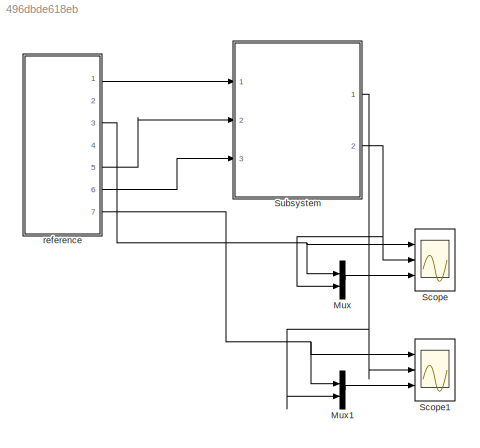
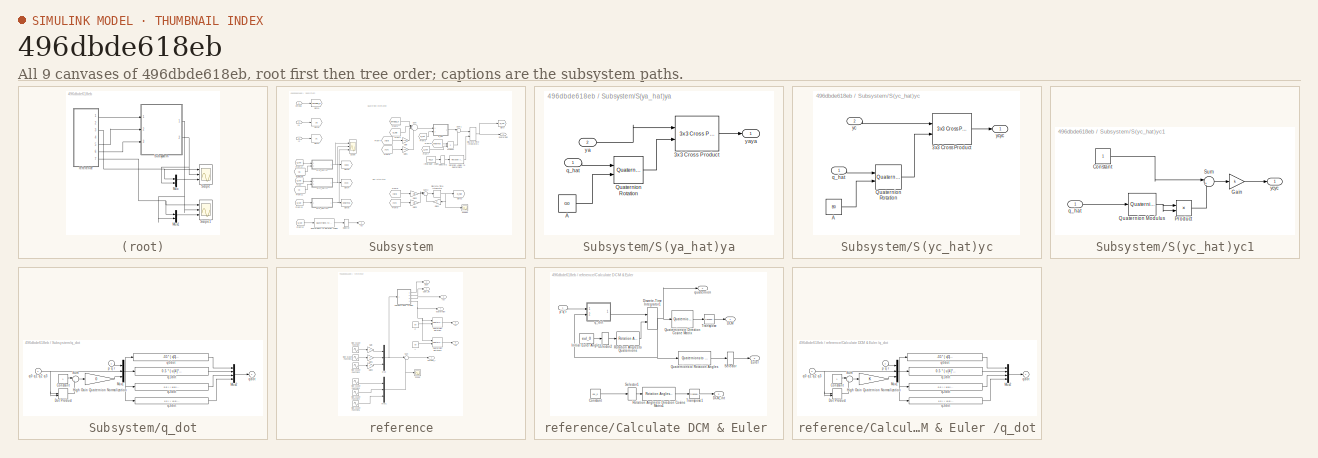
[diagram: thumbnail index - all 9 canvases of the model, root first then tree order]
MODEL slx_496dbde618eb
KIND model
CONFIG AbsTol = auto
CONFIG EnableMultiTasking = off
CONFIG FixedStep = t_sim
CONFIG MaxStep = auto
CONFIG MinStep = auto
CONFIG RelTol = 1e-3
CONFIG SampleTimeConstraint = Unconstrained
CONFIG SolverName = ode3
CONFIG StartTime = 0.0
CONFIG StopTime = 40
BLOCK [Mux] Mux
  DisplayOption = bar
  Inputs = 2
  Ports = [2, 1]
BLOCK [Mux] Mux1
  DisplayOption = bar
  Inputs = 2
  Ports = [2, 1]
BLOCK [Scope] Scope
  Floating = off
  NumInputPorts = 3
  Ports = [3]
  ScopeSpecificationString = Simulink.scopes.TimeScopeBlockCfg('CurrentConfiguration', extmgr.ConfigurationSet(extmgr.Configuration('Core','General UI',true),extmgr.Configuration('Core','Source UI',true),extmgr.Configuration('Sources','WiredSimulink',true),extmgr.Configuration('Visuals','Time Domain',true,'SerializedDisplays',{struct('MinYLimReal','-0.25','MaxYLimReal','2.25','YLabelReal','','MinYLimMag','0.00000','MaxYLimMag...<+2789ch>
BLOCK [Scope] Scope1
  Floating = off
  NumInputPorts = 3
  Ports = [3]
  ScopeSpecificationString = Simulink.scopes.TimeScopeBlockCfg('CurrentConfiguration', extmgr.ConfigurationSet(extmgr.Configuration('Core','General UI',true),extmgr.Configuration('Core','Source UI',true),extmgr.Configuration('Sources','WiredSimulink',true,'DataLoggingVariableName','ScopeData1'),extmgr.Configuration('Visuals','Time Domain',true,'SerializedDisplays',{struct('MinYLimReal','-0.125','MaxYLimReal','1.125','YLabelRe...<+2897ch>
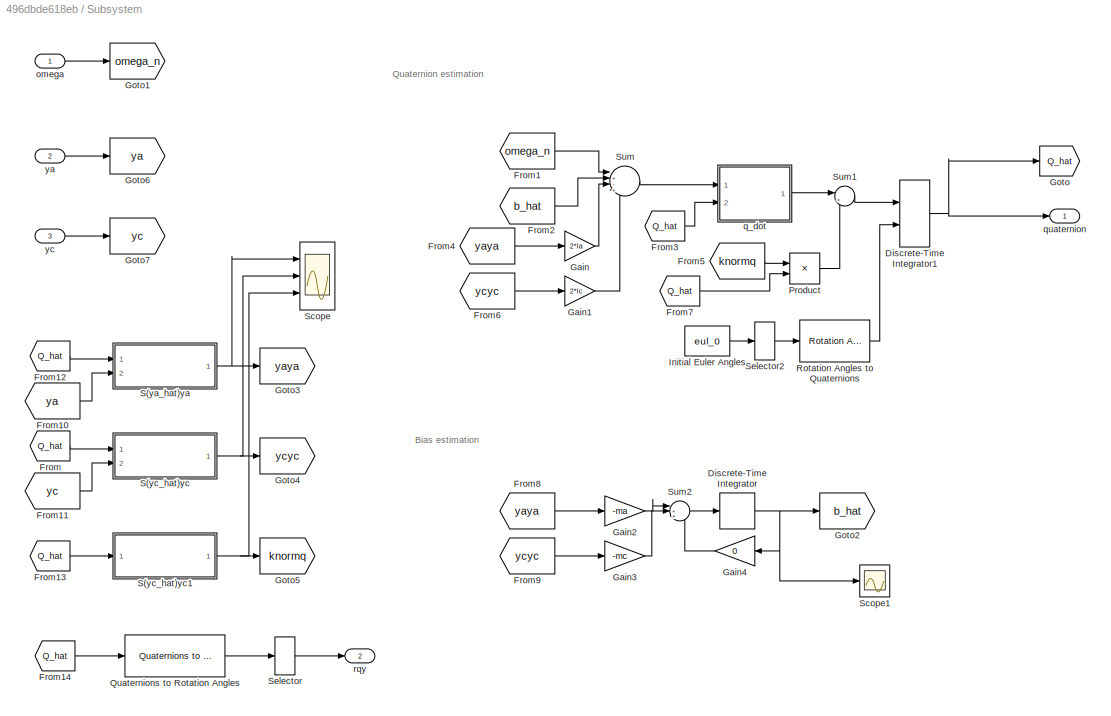
BLOCK [SubSystem] Subsystem
  Ports = [3, 2]
  RequestExecContextInheritance = off
BLOCK [DiscreteIntegrator] Subsystem/Discrete-Time Integrator
  ICPrevOutput = DiscIntNeverNeededParam
  ICPrevScaledInput = DiscIntNeverNeededParam
  InitialConditionSetting = Auto
  Ports = [1, 1]
  SampleTime = -1
BLOCK [DiscreteIntegrator] Subsystem/Discrete-Time Integrator1
  ICPrevOutput = DiscIntNeverNeededParam
  ICPrevScaledInput = DiscIntNeverNeededParam
  InitialConditionSetting = Auto
  InitialConditionSource = external
  Ports = [2, 1]
  SampleTime = -1
BLOCK [From] Subsystem/From
  GotoTag = Q_hat
BLOCK [From] Subsystem/From1
  GotoTag = omega_n
BLOCK [From] Subsystem/From10
  GotoTag = ya
BLOCK [From] Subsystem/From11
  GotoTag = yc
BLOCK [From] Subsystem/From12
  GotoTag = Q_hat
BLOCK [From] Subsystem/From13
  GotoTag = Q_hat
BLOCK [From] Subsystem/From14
  GotoTag = Q_hat
BLOCK [From] Subsystem/From2
  GotoTag = b_hat
BLOCK [From] Subsystem/From3
  GotoTag = Q_hat
BLOCK [From] Subsystem/From4
  GotoTag = yaya
BLOCK [From] Subsystem/From5
  GotoTag = knormq
BLOCK [From] Subsystem/From6
  GotoTag = ycyc
BLOCK [From] Subsystem/From7
  GotoTag = Q_hat
BLOCK [From] Subsystem/From8
  GotoTag = yaya
BLOCK [From] Subsystem/From9
  GotoTag = ycyc
BLOCK [Gain] Subsystem/Gain
  Gain = 2*la
BLOCK [Gain] Subsystem/Gain1
  Gain = 2*lc
BLOCK [Gain] Subsystem/Gain2
  Gain = -ma
BLOCK [Gain] Subsystem/Gain3
  Gain = -mc
BLOCK [Gain] Subsystem/Gain4
  Gain = 0
  NameLocation = top
BLOCK [Goto] Subsystem/Goto
  GotoTag = Q_hat
BLOCK [Goto] Subsystem/Goto1
  GotoTag = omega_n
BLOCK [Goto] Subsystem/Goto2
  GotoTag = b_hat
BLOCK [Goto] Subsystem/Goto3
  GotoTag = yaya
BLOCK [Goto] Subsystem/Goto4
  GotoTag = ycyc
BLOCK [Goto] Subsystem/Goto5
  GotoTag = knormq
BLOCK [Goto] Subsystem/Goto6
  GotoTag = ya
BLOCK [Goto] Subsystem/Goto7
  GotoTag = yc
BLOCK [Constant] Subsystem/Initial Euler Angles
  Value = eul_0
BLOCK [Product] Subsystem/Product
  Ports = [2, 1]
BLOCK [Reference] Subsystem/Quaternions to Rotation Angles  REF=sharedtransform/Quaternions to Rotation Angles
  AttributesFormatString = Rotation Order: %<rotationOrder>
  Ports = [1, 1]
  SourceBlock = sharedtransform/Quaternions to Rotation Angles
  SourceProductBaseCode = AE,PW,DR,MT,UV,VE
  SourceType = Quat2Ang
BLOCK [Reference] Subsystem/Rotation Angles to Quaternions  REF=sharedtransform/Rotation Angles to Quaternions
  AttributesFormatString = Rotation Order: %<rotationOrder>
  Ports = [1, 1]
  SourceBlock = sharedtransform/Rotation Angles to Quaternions
  SourceProductBaseCode = AE,PW,DR,MT,UV,VE
  SourceType = Ang2Quat
BLOCK [SubSystem] Subsystem/S(ya_hat)ya
  Ports = [2, 1]
  RequestExecContextInheritance = off
BLOCK [Reference] Subsystem/S(ya_hat)ya/3x3 Cross Product  REF=sharedutil/3x3 Cross Product
  Ports = [2, 1]
  SourceBlock = sharedutil/3x3 Cross Product
  SourceProductBaseCode = AE,PW,DR,MT,UV,VE
  SourceType = CrossProduct
BLOCK [Constant] Subsystem/S(ya_hat)ya/A
  Value = G0
BLOCK [Reference] Subsystem/S(ya_hat)ya/Quaternion Rotation  REF=aerolibutil/Quaternion
Rotation
  Ports = [2, 1]
  SourceBlock = aerolibutil/Quaternion\nRotation
  SourceProductBaseCode = AE
  SourceType = Quaternion Rotation
BLOCK [Inport] Subsystem/S(ya_hat)ya/q_hat
BLOCK [Inport] Subsystem/S(ya_hat)ya/ya
  Port = 2
BLOCK [Outport] Subsystem/S(ya_hat)ya/yaya
BLOCK [SubSystem] Subsystem/S(yc_hat)yc
  Ports = [2, 1]
  RequestExecContextInheritance = off
BLOCK [Reference] Subsystem/S(yc_hat)yc/3x3 Cross Product  REF=sharedutil/3x3 Cross Product
  Ports = [2, 1]
  SourceBlock = sharedutil/3x3 Cross Product
  SourceProductBaseCode = AE,PW,DR,MT,UV,VE
  SourceType = CrossProduct
BLOCK [Constant] Subsystem/S(yc_hat)yc/A
  Value = B0
BLOCK [Reference] Subsystem/S(yc_hat)yc/Quaternion Rotation  REF=aerolibutil/Quaternion
Rotation
  Ports = [2, 1]
  SourceBlock = aerolibutil/Quaternion\nRotation
  SourceProductBaseCode = AE
  SourceType = Quaternion Rotation
BLOCK [Inport] Subsystem/S(yc_hat)yc/q_hat
BLOCK [Inport] Subsystem/S(yc_hat)yc/yc
  Port = 2
BLOCK [Outport] Subsystem/S(yc_hat)yc/ycyc
BLOCK [SubSystem] Subsystem/S(yc_hat)yc1
  Ports = [1, 1]
  RequestExecContextInheritance = off
BLOCK [Constant] Subsystem/S(yc_hat)yc1/Constant
BLOCK [Gain] Subsystem/S(yc_hat)yc1/Gain
  Gain = k
BLOCK [Product] Subsystem/S(yc_hat)yc1/Product
  Ports = [2, 1]
BLOCK [Reference] Subsystem/S(yc_hat)yc1/Quaternion Modulus  REF=sharedutil/Quaternion
Modulus
  Ports = [1, 1]
  SourceBlock = sharedutil/Quaternion\nModulus
  SourceProductBaseCode = AE,PW,DR,MT,UV,VE
  SourceType = Quaternion Modulus
BLOCK [Sum] Subsystem/S(yc_hat)yc1/Sum
  Inputs = |+-
  Ports = [2, 1]
BLOCK [Inport] Subsystem/S(yc_hat)yc1/q_hat
BLOCK [Outport] Subsystem/S(yc_hat)yc1/ycyc
BLOCK [Scope] Subsystem/Scope
  Floating = off
  NumInputPorts = 3
  Ports = [3]
  ScopeSpecificationString = Simulink.scopes.TimeScopeBlockCfg('CurrentConfiguration', extmgr.ConfigurationSet(extmgr.Configuration('Core','General UI',true),extmgr.Configuration('Core','Source UI',true),extmgr.Configuration('Sources','WiredSimulink',true,'DataLoggingVariableName','ScopeData2'),extmgr.Configuration('Visuals','Time Domain',true,'SerializedDisplays',{struct('MinYLimReal','-0.01198','MaxYLimReal','0.01416','YLab...<+2785ch>
BLOCK [Scope] Subsystem/Scope1
  Floating = off
  NumInputPorts = 1
  Ports = [1]
  ScopeSpecificationString = Simulink.scopes.TimeScopeBlockCfg('CurrentConfiguration', extmgr.ConfigurationSet(extmgr.Configuration('Core','General UI',true),extmgr.Configuration('Core','Source UI',true),extmgr.Configuration('Sources','WiredSimulink',true,'DataLoggingVariableName','ScopeData4'),extmgr.Configuration('Visuals','Time Domain',true,'SerializedDisplays',{struct('MinYLimReal','-0.00819','MaxYLimReal','0.01262','YLab...<+1497ch>
BLOCK [Selector] Subsystem/Selector
  IndexOptions = Index vector (dialog)
  Indices = [3 2 1]
  InputPortWidth = 3
  NameLocation = top
  OutputSizes = 1
  Ports = [1, 1]
BLOCK [Selector] Subsystem/Selector2
  IndexOptions = Index vector (dialog)
  Indices = [3 2 1]
  InputPortWidth = 3
  NameLocation = top
  OutputSizes = 1
  Ports = [1, 1]
BLOCK [Sum] Subsystem/Sum
  Inputs = |+-++
  Ports = [4, 1]
BLOCK [Sum] Subsystem/Sum1
  Inputs = |++
  Ports = [2, 1]
BLOCK [Sum] Subsystem/Sum2
  Inputs = |++-
  Ports = [3, 1]
BLOCK [Inport] Subsystem/omega
BLOCK [SubSystem] Subsystem/q_dot
  Ports = [2, 1]
  RequestExecContextInheritance = off
BLOCK [Constant] Subsystem/q_dot/Constant
BLOCK [DotProduct] Subsystem/q_dot/Dot Product
  InputSameDT = off
  OutDataTypeStr = Inherit: Inherit via internal rule
BLOCK [Gain] Subsystem/q_dot/High Gain Quaternion Normalization
  Gain = 0
  OutDataTypeStr = Inherit: Same as input
  ParamDataTypeStr = Inherit: Same as input
  SaturateOnIntegerOverflow = on
BLOCK [Mux] Subsystem/q_dot/Mux1
  DisplayOption = bar
  Inputs = [3 4 1]
  Ports = [3, 1]
BLOCK [Mux] Subsystem/q_dot/Mux2
  DisplayOption = bar
  Ports = [4, 1]
BLOCK [Sum] Subsystem/q_dot/Sum
  InputSameDT = on
  Inputs = |+-
  OutDataTypeStr = Inherit: Same as first input
  Ports = [2, 1]
  SaturateOnIntegerOverflow = on
BLOCK [Inport] Subsystem/q_dot/p q r
  NameLocation = top
BLOCK [Inport] Subsystem/q_dot/q0 q1 q2 q3
  Port = 2
BLOCK [Fcn] Subsystem/q_dot/q0dot
  Expr = -0.5 * ( u[5]*u[1]+u[6]*u[2]+u[7]*u[3] ) + u[8]*u[4]
BLOCK [Fcn] Subsystem/q_dot/q1dot
  Expr = 0.5 * ( u[4]*u[1]+u[6]*u[3]-u[7]*u[2] ) + u[8]*u[5]
BLOCK [Fcn] Subsystem/q_dot/q2dot
  Expr = 0.5 * ( u[4]*u[2]+u[7]*u[1]-u[5]*u[3] ) + u[8]*u[6]
BLOCK [Fcn] Subsystem/q_dot/q3dot
  Expr = 0.5 * ( u[4]*u[3]+u[5]*u[2]-u[6]*u[1] ) + u[8]*u[7]
BLOCK [Outport] Subsystem/q_dot/qdot
  InitialOutput = 0
  VectorParamsAs1DForOutWhenUnconnected = off
BLOCK [Outport] Subsystem/quaternion
  VectorParamsAs1DForOutWhenUnconnected = off
BLOCK [Outport] Subsystem/rqy
  Port = 2
  VectorParamsAs1DForOutWhenUnconnected = off
BLOCK [Inport] Subsystem/ya
  Port = 2
BLOCK [Inport] Subsystem/yc
  Port = 3
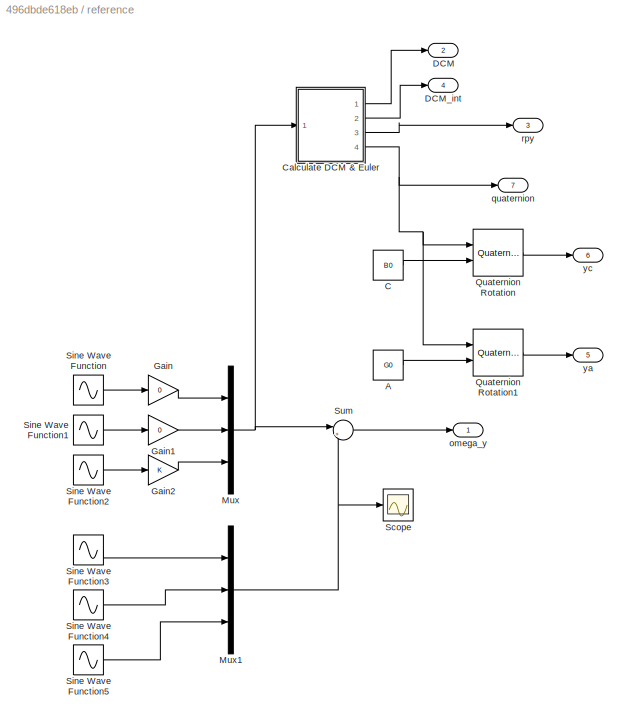
BLOCK [SubSystem] reference
  Ports = [0, 7]
  RequestExecContextInheritance = off
BLOCK [Constant] reference/A
  Value = G0
BLOCK [Constant] reference/C
  Value = B0
BLOCK [SubSystem] reference/Calculate DCM & Euler 
  Ports = [1, 4]
  RequestExecContextInheritance = off
BLOCK [Constant] reference/Calculate DCM & Euler /Constant
  Value = eul_0
BLOCK [Outport] reference/Calculate DCM & Euler /DCM
  VectorParamsAs1DForOutWhenUnconnected = off
BLOCK [Outport] reference/Calculate DCM & Euler /DCM_int
  Port = 2
  VectorParamsAs1DForOutWhenUnconnected = off
BLOCK [DiscreteIntegrator] reference/Calculate DCM & Euler /Discrete-Time Integrator1
  ICPrevOutput = DiscIntNeverNeededParam
  ICPrevScaledInput = DiscIntNeverNeededParam
  InitialConditionSetting = Auto
  InitialConditionSource = external
  Ports = [2, 1]
  SampleTime = -1
BLOCK [Outport] reference/Calculate DCM & Euler /Euler
  Port = 3
  VectorParamsAs1DForOutWhenUnconnected = off
BLOCK [Constant] reference/Calculate DCM & Euler /Initial Euler Angles
  Value = eul_0
BLOCK [Reference] reference/Calculate DCM & Euler /Quaternions to Direction Cosine Matrix  REF=sharedtransform/Quaternions to 
Direction Cosine Matrix
  Ports = [1, 1]
  SourceBlock = sharedtransform/Quaternions to \nDirection Cosine Matrix
  SourceProductBaseCode = AE,PW,DR,MT,UV,VE
  SourceType = Quaternion2DCM
BLOCK [Reference] reference/Calculate DCM & Euler /Quaternions to Rotation Angles  REF=sharedtransform/Quaternions to Rotation Angles
  AttributesFormatString = Rotation Order: %<rotationOrder>
  Ports = [1, 1]
  SourceBlock = sharedtransform/Quaternions to Rotation Angles
  SourceProductBaseCode = AE,PW,DR,MT,UV,VE
  SourceType = Quat2Ang
BLOCK [Reference] reference/Calculate DCM & Euler /Rotation Angles to Direction Cosine Matrix1  REF=sharedtransform/Rotation Angles to
Direction Cosine Matrix
  AttributesFormatString = Rotation Order: %<rotationOrder>
  Ports = [1, 1]
  SourceBlock = sharedtransform/Rotation Angles to\nDirection Cosine Matrix
  SourceProductBaseCode = AE,PW,DR,MT,UV,VE
  SourceType = Ang2DCM
BLOCK [Reference] reference/Calculate DCM & Euler /Rotation Angles to Quaternions  REF=sharedtransform/Rotation Angles to Quaternions
  AttributesFormatString = Rotation Order: %<rotationOrder>
  Ports = [1, 1]
  SourceBlock = sharedtransform/Rotation Angles to Quaternions
  SourceProductBaseCode = AE,PW,DR,MT,UV,VE
  SourceType = Ang2Quat
BLOCK [Selector] reference/Calculate DCM & Euler /Selector
  IndexOptions = Index vector (dialog)
  Indices = [3 2 1]
  InputPortWidth = 3
  NameLocation = top
  OutputSizes = 1
  Ports = [1, 1]
BLOCK [Selector] reference/Calculate DCM & Euler /Selector1
  IndexOptions = Index vector (dialog)
  Indices = [3 2 1]
  InputPortWidth = 3
  OutputSizes = 1
  Ports = [1, 1]
BLOCK [Selector] reference/Calculate DCM & Euler /Selector2
  IndexOptions = Index vector (dialog)
  Indices = [3 2 1]
  InputPortWidth = 3
  NameLocation = top
  OutputSizes = 1
  Ports = [1, 1]
BLOCK [Math] reference/Calculate DCM & Euler /Transpose
  Operator = transpose
  Ports = [1, 1]
  SignedPower = on
BLOCK [Math] reference/Calculate DCM & Euler /Transpose1
  Operator = transpose
  Ports = [1, 1]
  SignedPower = on
BLOCK [Inport] reference/Calculate DCM & Euler /p q r 
BLOCK [SubSystem] reference/Calculate DCM & Euler /q_dot
  Ports = [2, 1]
  RequestExecContextInheritance = off
BLOCK [Constant] reference/Calculate DCM & Euler /q_dot/Constant
BLOCK [DotProduct] reference/Calculate DCM & Euler /q_dot/Dot Product
  InputSameDT = off
  OutDataTypeStr = Inherit: Inherit via internal rule
BLOCK [Gain] reference/Calculate DCM & Euler /q_dot/High Gain Quaternion Normalization
  OutDataTypeStr = Inherit: Same as input
  ParamDataTypeStr = Inherit: Same as input
  SaturateOnIntegerOverflow = on
BLOCK [Mux] reference/Calculate DCM & Euler /q_dot/Mux1
  DisplayOption = bar
  Inputs = [3 4 1]
  Ports = [3, 1]
BLOCK [Mux] reference/Calculate DCM & Euler /q_dot/Mux2
  DisplayOption = bar
  Ports = [4, 1]
BLOCK [Sum] reference/Calculate DCM & Euler /q_dot/Sum
  InputSameDT = on
  Inputs = |+-
  OutDataTypeStr = Inherit: Same as first input
  Ports = [2, 1]
  SaturateOnIntegerOverflow = on
BLOCK [Inport] reference/Calculate DCM & Euler /q_dot/p q r
  NameLocation = top
BLOCK [Inport] reference/Calculate DCM & Euler /q_dot/q0 q1 q2 q3
  Port = 2
BLOCK [Fcn] reference/Calculate DCM & Euler /q_dot/q0dot
  Expr = -0.5 * ( u[5]*u[1]+u[6]*u[2]+u[7]*u[3] ) + u[8]*u[4]
BLOCK [Fcn] reference/Calculate DCM & Euler /q_dot/q1dot
  Expr = 0.5 * ( u[4]*u[1]+u[6]*u[3]-u[7]*u[2] ) + u[8]*u[5]
BLOCK [Fcn] reference/Calculate DCM & Euler /q_dot/q2dot
  Expr = 0.5 * ( u[4]*u[2]+u[7]*u[1]-u[5]*u[3] ) + u[8]*u[6]
BLOCK [Fcn] reference/Calculate DCM & Euler /q_dot/q3dot
  Expr = 0.5 * ( u[4]*u[3]+u[5]*u[2]-u[6]*u[1] ) + u[8]*u[7]
BLOCK [Outport] reference/Calculate DCM & Euler /q_dot/qdot
  InitialOutput = 0
  VectorParamsAs1DForOutWhenUnconnected = off
BLOCK [Outport] reference/Calculate DCM & Euler /quaternion
  Port = 4
  VectorParamsAs1DForOutWhenUnconnected = off
BLOCK [Outport] reference/DCM
  Port = 2
BLOCK [Outport] reference/DCM_int
  Port = 4
BLOCK [Gain] reference/Gain
  Gain = 0
BLOCK [Gain] reference/Gain1
  Gain = 0
BLOCK [Gain] reference/Gain2
BLOCK [Mux] reference/Mux
  DisplayOption = bar
  Inputs = 3
  Ports = [3, 1]
BLOCK [Mux] reference/Mux1
  DisplayOption = bar
  Inputs = 3
  Ports = [3, 1]
BLOCK [Reference] reference/Quaternion Rotation  REF=aerolibutil/Quaternion
Rotation
  Ports = [2, 1]
  SourceBlock = aerolibutil/Quaternion\nRotation
  SourceProductBaseCode = AE
  SourceType = Quaternion Rotation
BLOCK [Reference] reference/Quaternion Rotation1  REF=aerolibutil/Quaternion
Rotation
  Ports = [2, 1]
  SourceBlock = aerolibutil/Quaternion\nRotation
  SourceProductBaseCode = AE
  SourceType = Quaternion Rotation
BLOCK [Scope] reference/Scope
  Floating = off
  NumInputPorts = 1
  Ports = [1]
  ScopeSpecificationString = Simulink.scopes.TimeScopeBlockCfg('CurrentConfiguration', extmgr.ConfigurationSet(extmgr.Configuration('Core','General UI',true),extmgr.Configuration('Core','Source UI',true),extmgr.Configuration('Sources','WiredSimulink',true,'DataLoggingVariableName','ScopeData3'),extmgr.Configuration('Visuals','Time Domain',true,'SerializedDisplays',{struct('MinYLimReal','-0.00986','MaxYLimReal','0.01305','YLab...<+1449ch>
BLOCK [Sin] reference/Sine Wave Function
  Ports = [0, 1]
  SampleTime = 0
BLOCK [Sin] reference/Sine Wave Function1
  Ports = [0, 1]
  SampleTime = 0
BLOCK [Sin] reference/Sine Wave Function2
  Amplitude = 0.5
  Frequency = 0.5
  Ports = [0, 1]
  SampleTime = 0
BLOCK [Sin] reference/Sine Wave Function3
  Amplitude = 0.01
  Frequency = 0.1
  Ports = [0, 1]
  SampleTime = 0
BLOCK [Sin] reference/Sine Wave Function4
  Amplitude = 0.015
  Frequency = 0.02
  Ports = [0, 1]
  SampleTime = 0
BLOCK [Sin] reference/Sine Wave Function5
  Amplitude = 0.011
  Frequency = 0.005
  Ports = [0, 1]
  SampleTime = 0
BLOCK [Sum] reference/Sum
  Inputs = |++
  Ports = [2, 1]
BLOCK [Outport] reference/omega_y
BLOCK [Outport] reference/quaternion
  Port = 7
BLOCK [Outport] reference/rpy
  Port = 3
BLOCK [Outport] reference/ya
  Port = 5
BLOCK [Outport] reference/yc
  Port = 6
ANNOTATION Subsystem: Bias estimation
ANNOTATION Subsystem: Quaternion estimation
LINE Mux1:1 -> Scope1:3
LINE Mux:1 -> Scope:3
NET Subsystem/Discrete-Time Integrator1:1 -> Subsystem/Goto:1, Subsystem/quaternion:1
NET Subsystem/Discrete-Time Integrator:1 -> Subsystem/Gain4:1, Subsystem/Goto2:1, Subsystem/Scope1:1
LINE Subsystem/From10:1 -> Subsystem/S(ya_hat)ya:2
LINE Subsystem/From11:1 -> Subsystem/S(yc_hat)yc:2
LINE Subsystem/From12:1 -> Subsystem/S(ya_hat)ya:1
LINE Subsystem/From13:1 -> Subsystem/S(yc_hat)yc1:1
LINE Subsystem/From14:1 -> Subsystem/Quaternions to Rotation Angles:1
LINE Subsystem/From1:1 -> Subsystem/Sum:1
LINE Subsystem/From2:1 -> Subsystem/Sum:2
LINE Subsystem/From3:1 -> Subsystem/q_dot:2
LINE Subsystem/From4:1 -> Subsystem/Gain:1
LINE Subsystem/From5:1 -> Subsystem/Product:1
LINE Subsystem/From6:1 -> Subsystem/Gain1:1
LINE Subsystem/From7:1 -> Subsystem/Product:2
LINE Subsystem/From8:1 -> Subsystem/Gain2:1
LINE Subsystem/From9:1 -> Subsystem/Gain3:1
LINE Subsystem/From:1 -> Subsystem/S(yc_hat)yc:1
LINE Subsystem/Gain1:1 -> Subsystem/Sum:4
LINE Subsystem/Gain2:1 -> Subsystem/Sum2:1
LINE Subsystem/Gain3:1 -> Subsystem/Sum2:2
LINE Subsystem/Gain4:1 -> Subsystem/Sum2:3
LINE Subsystem/Gain:1 -> Subsystem/Sum:3
LINE Subsystem/Initial Euler Angles:1 -> Subsystem/Selector2:1
LINE Subsystem/Product:1 -> Subsystem/Sum1:2
LINE Subsystem/Quaternions to Rotation Angles:1 -> Subsystem/Selector:1
LINE Subsystem/Rotation Angles to Quaternions:1 -> Subsystem/Discrete-Time Integrator1:2
LINE Subsystem/S(ya_hat)ya/3x3 Cross Product:1 -> Subsystem/S(ya_hat)ya/yaya:1
LINE Subsystem/S(ya_hat)ya/A:1 -> Subsystem/S(ya_hat)ya/Quaternion Rotation:2
LINE Subsystem/S(ya_hat)ya/Quaternion Rotation:1 -> Subsystem/S(ya_hat)ya/3x3 Cross Product:2
LINE Subsystem/S(ya_hat)ya/q_hat:1 -> Subsystem/S(ya_hat)ya/Quaternion Rotation:1
LINE Subsystem/S(ya_hat)ya/ya:1 -> Subsystem/S(ya_hat)ya/3x3 Cross Product:1
NET Subsystem/S(ya_hat)ya:1 -> Subsystem/Goto3:1, Subsystem/Scope:1
LINE Subsystem/S(yc_hat)yc/3x3 Cross Product:1 -> Subsystem/S(yc_hat)yc/ycyc:1
LINE Subsystem/S(yc_hat)yc/A:1 -> Subsystem/S(yc_hat)yc/Quaternion Rotation:2
LINE Subsystem/S(yc_hat)yc/Quaternion Rotation:1 -> Subsystem/S(yc_hat)yc/3x3 Cross Product:2
LINE Subsystem/S(yc_hat)yc/q_hat:1 -> Subsystem/S(yc_hat)yc/Quaternion Rotation:1
LINE Subsystem/S(yc_hat)yc/yc:1 -> Subsystem/S(yc_hat)yc/3x3 Cross Product:1
LINE Subsystem/S(yc_hat)yc1/Constant:1 -> Subsystem/S(yc_hat)yc1/Sum:1
LINE Subsystem/S(yc_hat)yc1/Gain:1 -> Subsystem/S(yc_hat)yc1/ycyc:1
LINE Subsystem/S(yc_hat)yc1/Product:1 -> Subsystem/S(yc_hat)yc1/Sum:2
NET Subsystem/S(yc_hat)yc1/Quaternion Modulus:1 -> Subsystem/S(yc_hat)yc1/Product:1, Subsystem/S(yc_hat)yc1/Product:2
LINE Subsystem/S(yc_hat)yc1/Sum:1 -> Subsystem/S(yc_hat)yc1/Gain:1
LINE Subsystem/S(yc_hat)yc1/q_hat:1 -> Subsystem/S(yc_hat)yc1/Quaternion Modulus:1
NET Subsystem/S(yc_hat)yc1:1 -> Subsystem/Goto5:1, Subsystem/Scope:3
NET Subsystem/S(yc_hat)yc:1 -> Subsystem/Goto4:1, Subsystem/Scope:2
LINE Subsystem/Selector2:1 -> Subsystem/Rotation Angles to Quaternions:1
LINE Subsystem/Selector:1 -> Subsystem/rqy:1
LINE Subsystem/Sum1:1 -> Subsystem/Discrete-Time Integrator1:1
LINE Subsystem/Sum2:1 -> Subsystem/Discrete-Time Integrator:1
LINE Subsystem/Sum:1 -> Subsystem/q_dot:1
LINE Subsystem/omega:1 -> Subsystem/Goto1:1
LINE Subsystem/q_dot/Constant:1 -> Subsystem/q_dot/Sum:1
LINE Subsystem/q_dot/Dot Product:1 -> Subsystem/q_dot/Sum:2
LINE Subsystem/q_dot/High Gain Quaternion Normalization:1 -> Subsystem/q_dot/Mux1:3
NET Subsystem/q_dot/Mux1:1 -> Subsystem/q_dot/q0dot:1, Subsystem/q_dot/q1dot:1, Subsystem/q_dot/q2dot:1, Subsystem/q_dot/q3dot:1
LINE Subsystem/q_dot/Mux2:1 -> Subsystem/q_dot/qdot:1
LINE Subsystem/q_dot/Sum:1 -> Subsystem/q_dot/High Gain Quaternion Normalization:1
LINE Subsystem/q_dot/p q r:1 -> Subsystem/q_dot/Mux1:1
NET Subsystem/q_dot/q0 q1 q2 q3:1 -> Subsystem/q_dot/Dot Product:1, Subsystem/q_dot/Dot Product:2, Subsystem/q_dot/Mux1:2
LINE Subsystem/q_dot/q0dot:1 -> Subsystem/q_dot/Mux2:1
LINE Subsystem/q_dot/q1dot:1 -> Subsystem/q_dot/Mux2:2
LINE Subsystem/q_dot/q2dot:1 -> Subsystem/q_dot/Mux2:3
LINE Subsystem/q_dot/q3dot:1 -> Subsystem/q_dot/Mux2:4
LINE Subsystem/q_dot:1 -> Subsystem/Sum1:1
LINE Subsystem/ya:1 -> Subsystem/Goto6:1
LINE Subsystem/yc:1 -> Subsystem/Goto7:1
NET Subsystem:1 -> Mux1:2, Scope1:2
NET Subsystem:2 -> Mux:2, Scope:2
LINE reference/A:1 -> reference/Quaternion Rotation1:2
LINE reference/C:1 -> reference/Quaternion Rotation:2
LINE reference/Calculate DCM & Euler /Constant:1 -> reference/Calculate DCM & Euler /Selector1:1
NET reference/Calculate DCM & Euler /Discrete-Time Integrator1:1 -> reference/Calculate DCM & Euler /Quaternions to Direction Cosine Matrix:1, reference/Calculate DCM & Euler /Quaternions to Rotation Angles:1, reference/Calculate DCM & Euler /q_dot:2, reference/Calculate DCM & Euler /quaternion:1
LINE reference/Calculate DCM & Euler /Initial Euler Angles:1 -> reference/Calculate DCM & Euler /Selector2:1
LINE reference/Calculate DCM & Euler /Quaternions to Direction Cosine Matrix:1 -> reference/Calculate DCM & Euler /Transpose:1
LINE reference/Calculate DCM & Euler /Quaternions to Rotation Angles:1 -> reference/Calculate DCM & Euler /Selector:1
LINE reference/Calculate DCM & Euler /Rotation Angles to Direction Cosine Matrix1:1 -> reference/Calculate DCM & Euler /Transpose1:1
LINE reference/Calculate DCM & Euler /Rotation Angles to Quaternions:1 -> reference/Calculate DCM & Euler /Discrete-Time Integrator1:2
LINE reference/Calculate DCM & Euler /Selector1:1 -> reference/Calculate DCM & Euler /Rotation Angles to Direction Cosine Matrix1:1
LINE reference/Calculate DCM & Euler /Selector2:1 -> reference/Calculate DCM & Euler /Rotation Angles to Quaternions:1
LINE reference/Calculate DCM & Euler /Selector:1 -> reference/Calculate DCM & Euler /Euler:1
LINE reference/Calculate DCM & Euler /Transpose1:1 -> reference/Calculate DCM & Euler /DCM_int:1
LINE reference/Calculate DCM & Euler /Transpose:1 -> reference/Calculate DCM & Euler /DCM:1
LINE reference/Calculate DCM & Euler /p q r :1 -> reference/Calculate DCM & Euler /q_dot:1
LINE reference/Calculate DCM & Euler /q_dot/Constant:1 -> reference/Calculate DCM & Euler /q_dot/Sum:1
LINE reference/Calculate DCM & Euler /q_dot/Dot Product:1 -> reference/Calculate DCM & Euler /q_dot/Sum:2
LINE reference/Calculate DCM & Euler /q_dot/High Gain Quaternion Normalization:1 -> reference/Calculate DCM & Euler /q_dot/Mux1:3
NET reference/Calculate DCM & Euler /q_dot/Mux1:1 -> reference/Calculate DCM & Euler /q_dot/q0dot:1, reference/Calculate DCM & Euler /q_dot/q1dot:1, reference/Calculate DCM & Euler /q_dot/q2dot:1, reference/Calculate DCM & Euler /q_dot/q3dot:1
LINE reference/Calculate DCM & Euler /q_dot/Mux2:1 -> reference/Calculate DCM & Euler /q_dot/qdot:1
LINE reference/Calculate DCM & Euler /q_dot/Sum:1 -> reference/Calculate DCM & Euler /q_dot/High Gain Quaternion Normalization:1
LINE reference/Calculate DCM & Euler /q_dot/p q r:1 -> reference/Calculate DCM & Euler /q_dot/Mux1:1
NET reference/Calculate DCM & Euler /q_dot/q0 q1 q2 q3:1 -> reference/Calculate DCM & Euler /q_dot/Dot Product:1, reference/Calculate DCM & Euler /q_dot/Dot Product:2, reference/Calculate DCM & Euler /q_dot/Mux1:2
LINE reference/Calculate DCM & Euler /q_dot/q0dot:1 -> reference/Calculate DCM & Euler /q_dot/Mux2:1
LINE reference/Calculate DCM & Euler /q_dot/q1dot:1 -> reference/Calculate DCM & Euler /q_dot/Mux2:2
LINE reference/Calculate DCM & Euler /q_dot/q2dot:1 -> reference/Calculate DCM & Euler /q_dot/Mux2:3
LINE reference/Calculate DCM & Euler /q_dot/q3dot:1 -> reference/Calculate DCM & Euler /q_dot/Mux2:4
LINE reference/Calculate DCM & Euler /q_dot:1 -> reference/Calculate DCM & Euler /Discrete-Time Integrator1:1
LINE reference/Calculate DCM & Euler :1 -> reference/DCM:1
LINE reference/Calculate DCM & Euler :2 -> reference/DCM_int:1
LINE reference/Calculate DCM & Euler :3 -> reference/rpy:1
NET reference/Calculate DCM & Euler :4 -> reference/Quaternion Rotation1:1, reference/Quaternion Rotation:1, reference/quaternion:1
LINE reference/Gain1:1 -> reference/Mux:2
LINE reference/Gain2:1 -> reference/Mux:3
LINE reference/Gain:1 -> reference/Mux:1
NET reference/Mux1:1 -> reference/Scope:1, reference/Sum:2
NET reference/Mux:1 -> reference/Calculate DCM & Euler :1, reference/Sum:1
LINE reference/Quaternion Rotation1:1 -> reference/ya:1
LINE reference/Quaternion Rotation:1 -> reference/yc:1
LINE reference/Sine Wave Function1:1 -> reference/Gain1:1
LINE reference/Sine Wave Function2:1 -> reference/Gain2:1
LINE reference/Sine Wave Function3:1 -> reference/Mux1:1
LINE reference/Sine Wave Function4:1 -> reference/Mux1:2
LINE reference/Sine Wave Function5:1 -> reference/Mux1:3
LINE reference/Sine Wave Function:1 -> reference/Gain:1
LINE reference/Sum:1 -> reference/omega_y:1
LINE reference:1 -> Subsystem:1
NET reference:3 -> Mux:1, Scope:1
LINE reference:5 -> Subsystem:2
LINE reference:6 -> Subsystem:3
NET reference:7 -> Mux1:1, Scope1:1
note: NET lines group one-source signal fan-out (src -> all destinations, sorted); 1:1 wires keep LINE
